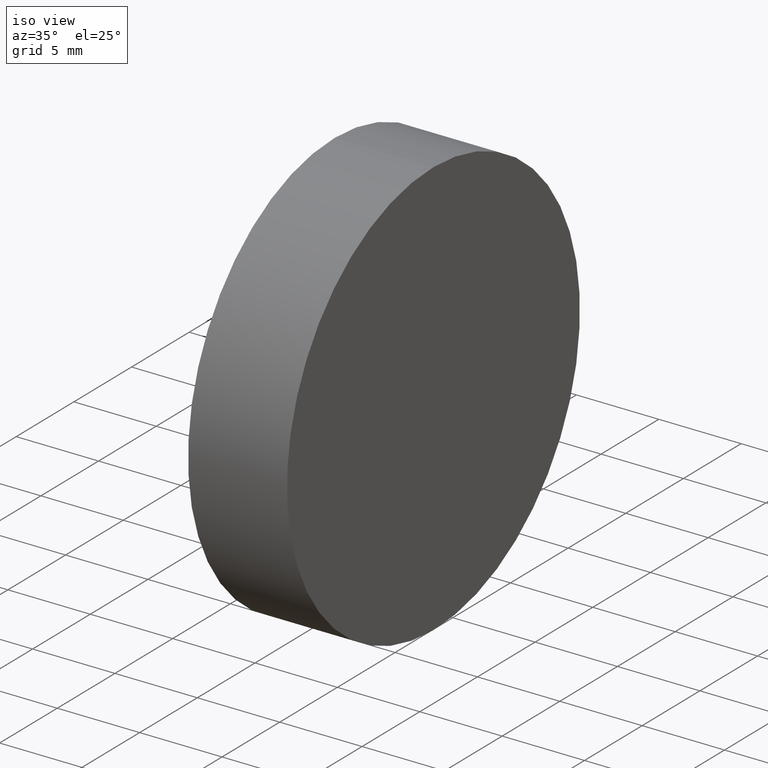
[diagram: clean part render]
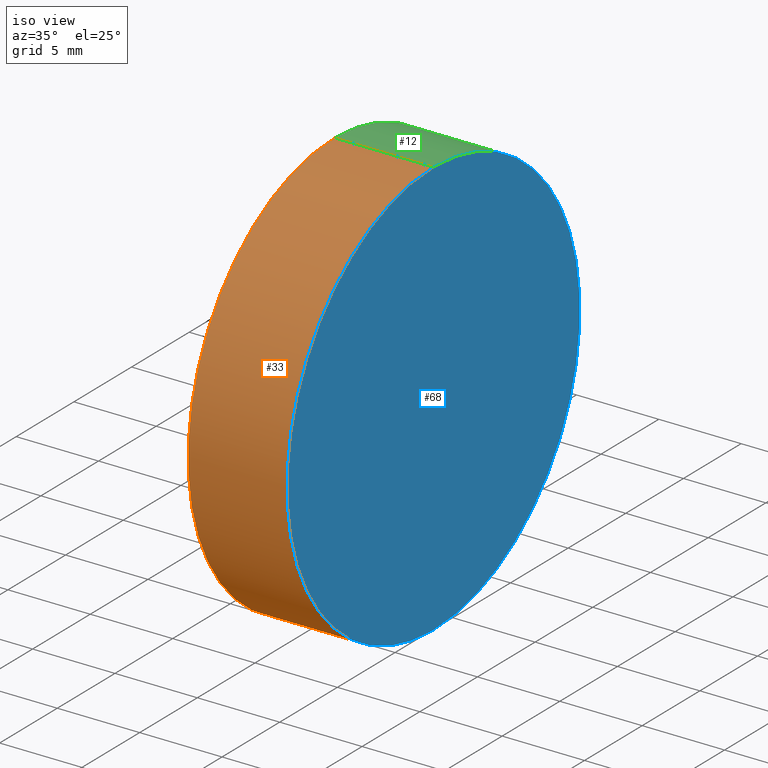
[diagram: same view with three faces highlighted in distinct colors, each labeled with its STEP entity id]
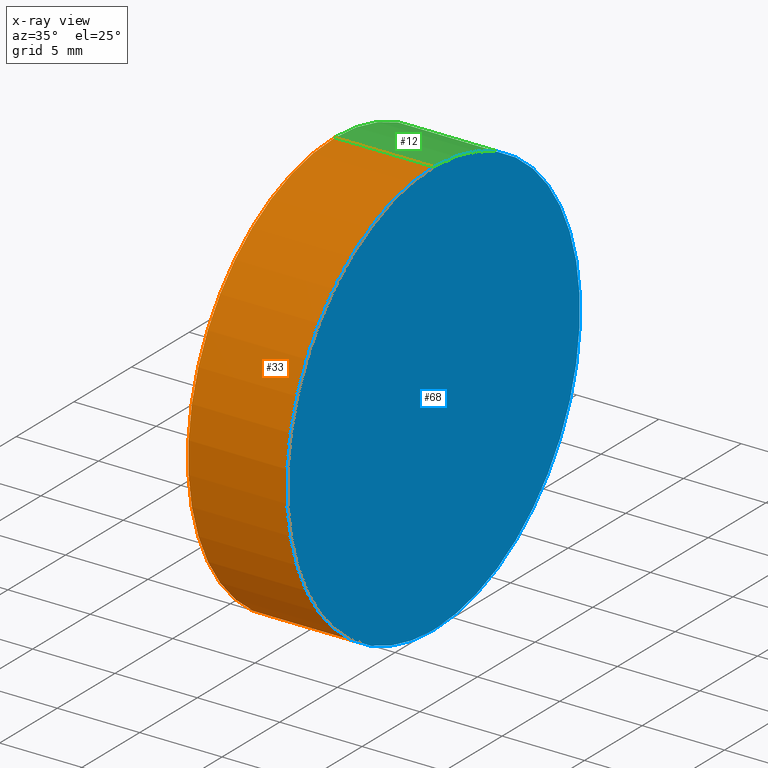
[diagram: x-ray of the same camera — body ghosted, the three highlighted faces saturated]
A machine part, iso view with three faces highlighted in distinct colors.
The next image is the same camera in x-ray (body ghosted, the three faces saturated) — at least one of them is partly hidden behind the body in this view.
Their STEP definitions:

[orange] entity #33 — the highlighted cylindrical surface (partial cylindrical patch) has radius 12.7 mm, axis along (-1, -0, -0).
#4 = DIRECTION ( 'NONE',  ( -1.000000000000000000, -0.0000000000000000000, -0.0000000000000000000 ) ) ;
#7 = DIRECTION ( 'NONE',  ( -1.000000000000000000, -0.0000000000000000000, -0.0000000000000000000 ) ) ;
#14 = CYLINDRICAL_SURFACE ( 'NONE', #30, 12.70000000000000300 ) ;
#19 = ORIENTED_EDGE ( 'NONE', *, *, #37, .T. ) ;
#24 = DIRECTION ( 'NONE',  ( -1.000000000000000000, -0.0000000000000000000, -0.0000000000000000000 ) ) ;
#28 = DIRECTION ( 'NONE',  ( 0.0000000000000000000, 0.0000000000000000000, 1.000000000000000000 ) ) ;
#30 = AXIS2_PLACEMENT_3D ( 'NONE', #102, #94, #28 ) ;
#33 = ADVANCED_FACE ( 'NONE', ( #75 ), #14, .T. ) ;
#37 = EDGE_CURVE ( 'NONE', #139, #42, #47, .T. ) ;
#42 = VERTEX_POINT ( 'NONE', #135 ) ;
#43 = EDGE_CURVE ( 'NONE', #50, #45, #126, .T. ) ;
#44 = VECTOR ( 'NONE', #24, 1000.000000000000000 ) ;
#45 = VERTEX_POINT ( 'NONE', #71 ) ;
#47 = CIRCLE ( 'NONE', #55, 12.70000000000000300 ) ;
#50 = VERTEX_POINT ( 'NONE', #92 ) ;
#51 = AXIS2_PLACEMENT_3D ( 'NONE', #84, #4, #106 ) ;
#55 = AXIS2_PLACEMENT_3D ( 'NONE', #136, #100, #101 ) ;
#57 = CARTESIAN_POINT ( 'NONE',  ( 265.7243528930642900, 77.29317934901541800, -12.70000000000000300 ) ) ;
#70 = LINE ( 'NONE', #137, #124 ) ;
#71 = CARTESIAN_POINT ( 'NONE',  ( 259.7243528930642900, 77.29317934901541800, 12.70000000000000300 ) ) ;
#75 = FACE_OUTER_BOUND ( 'NONE', #119, .T. ) ;
#82 = ORIENTED_EDGE ( 'NONE', *, *, #128, .F. ) ;
#84 = CARTESIAN_POINT ( 'NONE',  ( 259.7243528930642900, 77.29317934901541800, 0.0000000000000000000 ) ) ;
#89 = CARTESIAN_POINT ( 'NONE',  ( 254.0008019926160300, 77.29317934901541800, -12.70000000000000300 ) ) ;
#92 = CARTESIAN_POINT ( 'NONE',  ( 259.7243528930642900, 77.29317934901541800, -12.70000000000000300 ) ) ;
#94 = DIRECTION ( 'NONE',  ( -1.000000000000000000, -0.0000000000000000000, -0.0000000000000000000 ) ) ;
#98 = LINE ( 'NONE', #89, #44 ) ;
#100 = DIRECTION ( 'NONE',  ( -1.000000000000000000, -0.0000000000000000000, -0.0000000000000000000 ) ) ;
#101 = DIRECTION ( 'NONE',  ( 0.0000000000000000000, 0.0000000000000000000, 1.000000000000000000 ) ) ;
#102 = CARTESIAN_POINT ( 'NONE',  ( 254.0008019926160300, 77.29317934901541800, 0.0000000000000000000 ) ) ;
#106 = DIRECTION ( 'NONE',  ( 0.0000000000000000000, 0.0000000000000000000, 1.000000000000000000 ) ) ;
#107 = ORIENTED_EDGE ( 'NONE', *, *, #116, .T. ) ;
#116 = EDGE_CURVE ( 'NONE', #42, #45, #70, .T. ) ;
#119 = EDGE_LOOP ( 'NONE', ( #82, #19, #107, #133 ) ) ;
#124 = VECTOR ( 'NONE', #7, 1000.000000000000000 ) ;
#126 = CIRCLE ( 'NONE', #51, 12.70000000000000300 ) ;
#128 = EDGE_CURVE ( 'NONE', #139, #50, #98, .T. ) ;
#133 = ORIENTED_EDGE ( 'NONE', *, *, #43, .F. ) ;
#135 = CARTESIAN_POINT ( 'NONE',  ( 265.7243528930642900, 77.29317934901541800, 12.70000000000000300 ) ) ;
#136 = CARTESIAN_POINT ( 'NONE',  ( 265.7243528930642900, 77.29317934901541800, 0.0000000000000000000 ) ) ;
#137 = CARTESIAN_POINT ( 'NONE',  ( 254.0008019926160300, 77.29317934901541800, 12.70000000000000300 ) ) ;
#139 = VERTEX_POINT ( 'NONE', #57 ) ;

[blue] entity #68 — the highlighted planar face has unit normal (-1, 0, -0).
#8 = CIRCLE ( 'NONE', #140, 12.70000000000000300 ) ;
#15 = PLANE ( 'NONE',  #66 ) ;
#29 = ORIENTED_EDGE ( 'NONE', *, *, #122, .F. ) ;
#37 = EDGE_CURVE ( 'NONE', #139, #42, #47, .T. ) ;
#41 = CARTESIAN_POINT ( 'NONE',  ( 265.7243528930642900, 77.29317934901541800, 0.0000000000000000000 ) ) ;
#42 = VERTEX_POINT ( 'NONE', #135 ) ;
#47 = CIRCLE ( 'NONE', #55, 12.70000000000000300 ) ;
#55 = AXIS2_PLACEMENT_3D ( 'NONE', #136, #100, #101 ) ;
#57 = CARTESIAN_POINT ( 'NONE',  ( 265.7243528930642900, 77.29317934901541800, -12.70000000000000300 ) ) ;
#60 = CARTESIAN_POINT ( 'NONE',  ( 265.7243528930642900, 77.29317934901541800, 0.0000000000000000000 ) ) ;
#66 = AXIS2_PLACEMENT_3D ( 'NONE', #41, #97, #125 ) ;
#68 = ADVANCED_FACE ( 'NONE', ( #127 ), #15, .F. ) ;
#96 = ORIENTED_EDGE ( 'NONE', *, *, #37, .F. ) ;
#97 = DIRECTION ( 'NONE',  ( -1.000000000000000000, 0.0000000000000000000, -0.0000000000000000000 ) ) ;
#100 = DIRECTION ( 'NONE',  ( -1.000000000000000000, -0.0000000000000000000, -0.0000000000000000000 ) ) ;
#101 = DIRECTION ( 'NONE',  ( 0.0000000000000000000, 0.0000000000000000000, 1.000000000000000000 ) ) ;
#104 = EDGE_LOOP ( 'NONE', ( #29, #96 ) ) ;
#111 = DIRECTION ( 'NONE',  ( -1.000000000000000000, -0.0000000000000000000, -0.0000000000000000000 ) ) ;
#122 = EDGE_CURVE ( 'NONE', #42, #139, #8, .T. ) ;
#125 = DIRECTION ( 'NONE',  ( -0.0000000000000000000, 0.0000000000000000000, 1.000000000000000000 ) ) ;
#127 = FACE_OUTER_BOUND ( 'NONE', #104, .T. ) ;
#132 = DIRECTION ( 'NONE',  ( 0.0000000000000000000, 0.0000000000000000000, 1.000000000000000000 ) ) ;
#135 = CARTESIAN_POINT ( 'NONE',  ( 265.7243528930642900, 77.29317934901541800, 12.70000000000000300 ) ) ;
#136 = CARTESIAN_POINT ( 'NONE',  ( 265.7243528930642900, 77.29317934901541800, 0.0000000000000000000 ) ) ;
#139 = VERTEX_POINT ( 'NONE', #57 ) ;
#140 = AXIS2_PLACEMENT_3D ( 'NONE', #60, #111, #132 ) ;

[green] entity #12 — the highlighted cylindrical surface (partial cylindrical patch) has radius 12.7 mm, axis along (-1, -0, -0).
#7 = DIRECTION ( 'NONE',  ( -1.000000000000000000, -0.0000000000000000000, -0.0000000000000000000 ) ) ;
#8 = CIRCLE ( 'NONE', #140, 12.70000000000000300 ) ;
#12 = ADVANCED_FACE ( 'NONE', ( #77 ), #81, .T. ) ;
#17 = CARTESIAN_POINT ( 'NONE',  ( 259.7243528930642900, 77.29317934901541800, 0.0000000000000000000 ) ) ;
#22 = AXIS2_PLACEMENT_3D ( 'NONE', #91, #62, #61 ) ;
#24 = DIRECTION ( 'NONE',  ( -1.000000000000000000, -0.0000000000000000000, -0.0000000000000000000 ) ) ;
#25 = ORIENTED_EDGE ( 'NONE', *, *, #59, .F. ) ;
#40 = CIRCLE ( 'NONE', #131, 12.70000000000000300 ) ;
#42 = VERTEX_POINT ( 'NONE', #135 ) ;
#44 = VECTOR ( 'NONE', #24, 1000.000000000000000 ) ;
#45 = VERTEX_POINT ( 'NONE', #71 ) ;
#50 = VERTEX_POINT ( 'NONE', #92 ) ;
#54 = ORIENTED_EDGE ( 'NONE', *, *, #128, .T. ) ;
#57 = CARTESIAN_POINT ( 'NONE',  ( 265.7243528930642900, 77.29317934901541800, -12.70000000000000300 ) ) ;
#59 = EDGE_CURVE ( 'NONE', #45, #50, #40, .T. ) ;
#60 = CARTESIAN_POINT ( 'NONE',  ( 265.7243528930642900, 77.29317934901541800, 0.0000000000000000000 ) ) ;
#61 = DIRECTION ( 'NONE',  ( 0.0000000000000000000, 0.0000000000000000000, 1.000000000000000000 ) ) ;
#62 = DIRECTION ( 'NONE',  ( -1.000000000000000000, -0.0000000000000000000, -0.0000000000000000000 ) ) ;
#70 = LINE ( 'NONE', #137, #124 ) ;
#71 = CARTESIAN_POINT ( 'NONE',  ( 259.7243528930642900, 77.29317934901541800, 12.70000000000000300 ) ) ;
#72 = DIRECTION ( 'NONE',  ( -1.000000000000000000, -0.0000000000000000000, -0.0000000000000000000 ) ) ;
#73 = EDGE_LOOP ( 'NONE', ( #112, #54, #25, #86 ) ) ;
#77 = FACE_OUTER_BOUND ( 'NONE', #73, .T. ) ;
#81 = CYLINDRICAL_SURFACE ( 'NONE', #22, 12.70000000000000300 ) ;
#86 = ORIENTED_EDGE ( 'NONE', *, *, #116, .F. ) ;
#89 = CARTESIAN_POINT ( 'NONE',  ( 254.0008019926160300, 77.29317934901541800, -12.70000000000000300 ) ) ;
#91 = CARTESIAN_POINT ( 'NONE',  ( 254.0008019926160300, 77.29317934901541800, 0.0000000000000000000 ) ) ;
#92 = CARTESIAN_POINT ( 'NONE',  ( 259.7243528930642900, 77.29317934901541800, -12.70000000000000300 ) ) ;
#98 = LINE ( 'NONE', #89, #44 ) ;
#111 = DIRECTION ( 'NONE',  ( -1.000000000000000000, -0.0000000000000000000, -0.0000000000000000000 ) ) ;
#112 = ORIENTED_EDGE ( 'NONE', *, *, #122, .T. ) ;
#115 = DIRECTION ( 'NONE',  ( 0.0000000000000000000, 0.0000000000000000000, 1.000000000000000000 ) ) ;
#116 = EDGE_CURVE ( 'NONE', #42, #45, #70, .T. ) ;
#122 = EDGE_CURVE ( 'NONE', #42, #139, #8, .T. ) ;
#124 = VECTOR ( 'NONE', #7, 1000.000000000000000 ) ;
#128 = EDGE_CURVE ( 'NONE', #139, #50, #98, .T. ) ;
#131 = AXIS2_PLACEMENT_3D ( 'NONE', #17, #72, #115 ) ;
#132 = DIRECTION ( 'NONE',  ( 0.0000000000000000000, 0.0000000000000000000, 1.000000000000000000 ) ) ;
#135 = CARTESIAN_POINT ( 'NONE',  ( 265.7243528930642900, 77.29317934901541800, 12.70000000000000300 ) ) ;
#137 = CARTESIAN_POINT ( 'NONE',  ( 254.0008019926160300, 77.29317934901541800, 12.70000000000000300 ) ) ;
#139 = VERTEX_POINT ( 'NONE', #57 ) ;
#140 = AXIS2_PLACEMENT_3D ( 'NONE', #60, #111, #132 ) ;